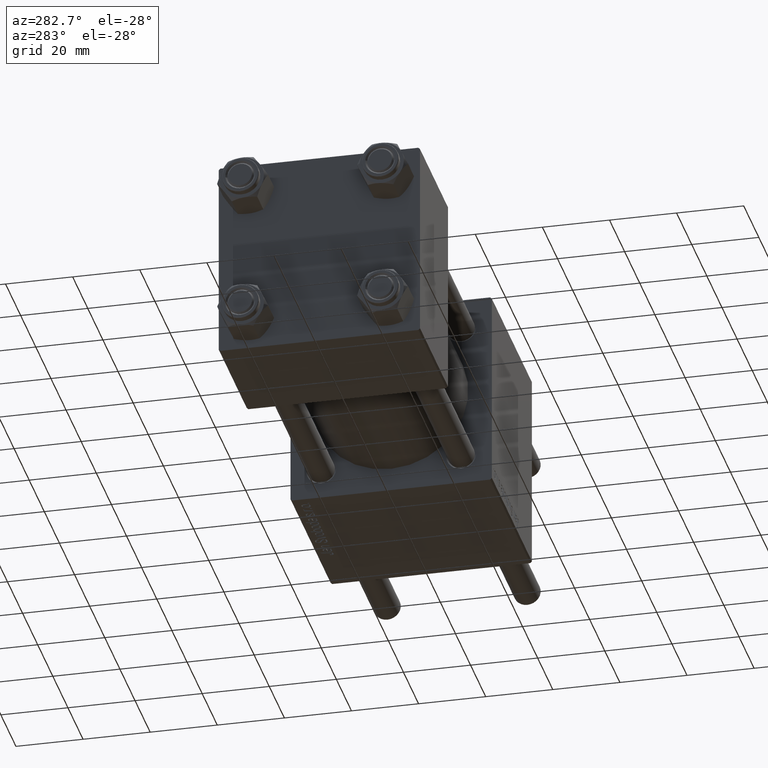
[diagram: clean part render]
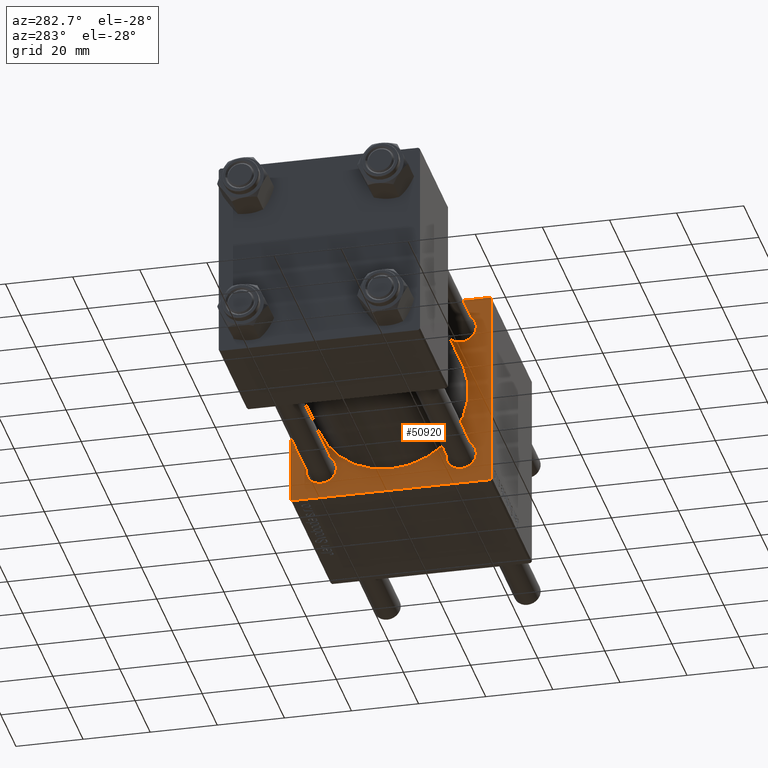
[diagram: same view with one face highlighted and labeled with its STEP entity id]
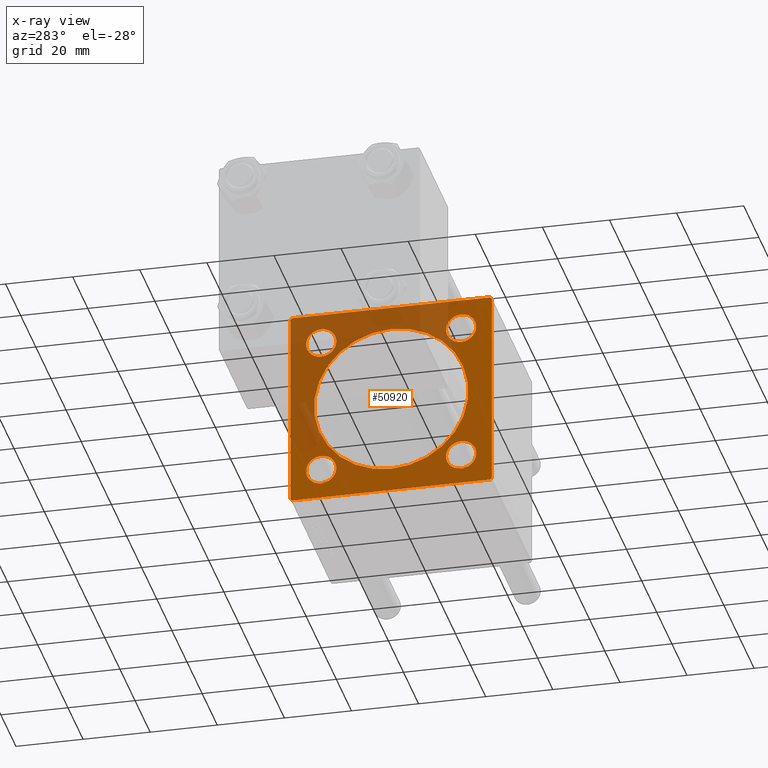
[diagram: x-ray of the same camera — body ghosted, the highlighted face saturated]
A machine part, auxiliary view. The second image highlights one B-rep face of the part: STEP entity #50920.
The next image is the same camera in x-ray: the body ghosted, the highlighted face saturated — about 41% of this face is hidden behind the body in this view.
In plain terms, the highlighted planar face has unit normal (-1, 0, 0).
Its self-contained STEP definition (entity closure, byte-faithful):
#51 = ORIENTED_EDGE ( 'NONE', *, *, #18965, .T. ) ;
#254 = CIRCLE ( 'NONE', #54559, 4.500000000000003553 ) ;
#287 = VECTOR ( 'NONE', #8270, 1000.000000000000000 ) ;
#370 = CARTESIAN_POINT ( 'NONE',  ( 95.00000000000000000, -20.84999999999999076, 16.35000000000000142 ) ) ;
#865 = ORIENTED_EDGE ( 'NONE', *, *, #24349, .T. ) ;
#909 = CARTESIAN_POINT ( 'NONE',  ( 95.00000000000000000, 20.84999999999999787, 16.34999999999999787 ) ) ;
#1102 = AXIS2_PLACEMENT_3D ( 'NONE', #15435, #54928, #10561 ) ;
#1162 = DIRECTION ( 'NONE',  ( 0.000000000000000000, 0.000000000000000000, 1.000000000000000000 ) ) ;
#1931 = CARTESIAN_POINT ( 'NONE',  ( 95.00000000000000000, -20.84999999999999076, -25.35000000000000853 ) ) ;
#1942 = LINE ( 'NONE', #16817, #34297 ) ;
#2328 = EDGE_CURVE ( 'NONE', #7538, #37507, #5188, .T. ) ;
#2448 = AXIS2_PLACEMENT_3D ( 'NONE', #36810, #50076, #44891 ) ;
#2460 = EDGE_CURVE ( 'NONE', #17973, #16271, #28729, .T. ) ;
#2643 = CIRCLE ( 'NONE', #26541, 4.500000000000003553 ) ;
#2949 = DIRECTION ( 'NONE',  ( 0.000000000000000000, 0.000000000000000000, 1.000000000000000000 ) ) ;
#3350 = LINE ( 'NONE', #55528, #48065 ) ;
#4271 = EDGE_CURVE ( 'NONE', #21496, #24437, #11679, .T. ) ;
#5124 = VERTEX_POINT ( 'NONE', #32280 ) ;
#5188 = CIRCLE ( 'NONE', #2448, 23.00000000000000000 ) ;
#5906 = VERTEX_POINT ( 'NONE', #909 ) ;
#6455 = DIRECTION ( 'NONE',  ( 0.000000000000000000, -1.000000000000000000, -1.156482317317871478E-16 ) ) ;
#6620 = AXIS2_PLACEMENT_3D ( 'NONE', #32981, #20014, #50865 ) ;
#6862 = ORIENTED_EDGE ( 'NONE', *, *, #51645, .T. ) ;
#7363 = DIRECTION ( 'NONE',  ( 1.000000000000000000, -0.000000000000000000, 0.000000000000000000 ) ) ;
#7538 = VERTEX_POINT ( 'NONE', #53842 ) ;
#7701 = AXIS2_PLACEMENT_3D ( 'NONE', #42318, #55883, #51541 ) ;
#8077 = CARTESIAN_POINT ( 'NONE',  ( 95.00000000000000000, -29.50000000000000000, -30.00000000000000000 ) ) ;
#8270 = DIRECTION ( 'NONE',  ( 0.000000000000000000, 0.000000000000000000, -1.000000000000000000 ) ) ;
#9461 = VECTOR ( 'NONE', #47860, 1000.000000000000000 ) ;
#9606 = DIRECTION ( 'NONE',  ( 1.000000000000000000, -0.000000000000000000, 0.000000000000000000 ) ) ;
#10208 = CIRCLE ( 'NONE', #35940, 4.500000000000003553 ) ;
#10240 = EDGE_CURVE ( 'NONE', #46857, #21429, #23684, .T. ) ;
#10561 = DIRECTION ( 'NONE',  ( -0.000000000000000000, 0.000000000000000000, 1.000000000000000000 ) ) ;
#10569 = DIRECTION ( 'NONE',  ( 1.000000000000000000, -0.000000000000000000, 0.000000000000000000 ) ) ;
#11072 = ORIENTED_EDGE ( 'NONE', *, *, #56111, .T. ) ;
#11137 = FACE_BOUND ( 'NONE', #45537, .T. ) ;
#11679 = CIRCLE ( 'NONE', #55862, 4.500000000000003553 ) ;
#11827 = EDGE_LOOP ( 'NONE', ( #54518, #13525 ) ) ;
#12001 = AXIS2_PLACEMENT_3D ( 'NONE', #19660, #9606, #45603 ) ;
#13101 = CARTESIAN_POINT ( 'NONE',  ( 95.00000000000000000, -20.84999999999999076, -16.35000000000000142 ) ) ;
#13525 = ORIENTED_EDGE ( 'NONE', *, *, #31703, .T. ) ;
#14872 = PLANE ( 'NONE',  #1102 ) ;
#15435 = CARTESIAN_POINT ( 'NONE',  ( 95.00000000000000000, 0.000000000000000000, 0.000000000000000000 ) ) ;
#15618 = CARTESIAN_POINT ( 'NONE',  ( 95.00000000000000000, -20.84999999999999076, -20.85000000000000497 ) ) ;
#16271 = VERTEX_POINT ( 'NONE', #24984 ) ;
#16817 = CARTESIAN_POINT ( 'NONE',  ( 95.00000000000000000, -29.74999999999999645, -29.74999999999999645 ) ) ;
#17973 = VERTEX_POINT ( 'NONE', #26640 ) ;
#18409 = ORIENTED_EDGE ( 'NONE', *, *, #31888, .F. ) ;
#18438 = CARTESIAN_POINT ( 'NONE',  ( 95.00000000000000000, -20.84999999999999076, -20.85000000000000497 ) ) ;
#18575 = CARTESIAN_POINT ( 'NONE',  ( 95.00000000000000000, -20.84999999999999076, 20.85000000000000497 ) ) ;
#18965 = EDGE_CURVE ( 'NONE', #21700, #47800, #48783, .T. ) ;
#19131 = LINE ( 'NONE', #44796, #31491 ) ;
#19482 = DIRECTION ( 'NONE',  ( 0.000000000000000000, 0.000000000000000000, 1.000000000000000000 ) ) ;
#19660 = CARTESIAN_POINT ( 'NONE',  ( 95.00000000000000000, -20.84999999999999076, 20.85000000000000497 ) ) ;
#19757 = FACE_BOUND ( 'NONE', #44083, .T. ) ;
#20014 = DIRECTION ( 'NONE',  ( 1.000000000000000000, 0.000000000000000000, 0.000000000000000000 ) ) ;
#20317 = DIRECTION ( 'NONE',  ( 0.000000000000000000, 0.000000000000000000, 1.000000000000000000 ) ) ;
#20407 = VECTOR ( 'NONE', #38397, 1000.000000000000114 ) ;
#20681 = CARTESIAN_POINT ( 'NONE',  ( 95.00000000000000000, 30.00000000000000000, 30.00000000000000000 ) ) ;
#21429 = VERTEX_POINT ( 'NONE', #1931 ) ;
#21496 = VERTEX_POINT ( 'NONE', #33601 ) ;
#21700 = VERTEX_POINT ( 'NONE', #46443 ) ;
#22316 = DIRECTION ( 'NONE',  ( 1.000000000000000000, -0.000000000000000000, 0.000000000000000000 ) ) ;
#22892 = EDGE_CURVE ( 'NONE', #45935, #5124, #37532, .T. ) ;
#23684 = CIRCLE ( 'NONE', #25528, 4.500000000000003553 ) ;
#24349 = EDGE_CURVE ( 'NONE', #29201, #37692, #47480, .T. ) ;
#24356 = FACE_BOUND ( 'NONE', #46132, .T. ) ;
#24401 = CARTESIAN_POINT ( 'NONE',  ( 95.00000000000000000, 29.74999999999999645, 29.74999999999999645 ) ) ;
#24437 = VERTEX_POINT ( 'NONE', #36206 ) ;
#24624 = CARTESIAN_POINT ( 'NONE',  ( 95.00000000000000000, 20.84999999999999787, 20.85000000000000142 ) ) ;
#24984 = CARTESIAN_POINT ( 'NONE',  ( 95.00000000000000000, 30.00000000000000000, 29.50000000000000000 ) ) ;
#24991 = AXIS2_PLACEMENT_3D ( 'NONE', #24624, #7363, #20317 ) ;
#25528 = AXIS2_PLACEMENT_3D ( 'NONE', #18438, #44661, #1162 ) ;
#25889 = VECTOR ( 'NONE', #52931, 1000.000000000000114 ) ;
#26395 = ORIENTED_EDGE ( 'NONE', *, *, #4271, .T. ) ;
#26541 = AXIS2_PLACEMENT_3D ( 'NONE', #32448, #10569, #19482 ) ;
#26640 = CARTESIAN_POINT ( 'NONE',  ( 95.00000000000000000, 29.50000000000000000, 30.00000000000000000 ) ) ;
#27981 = ORIENTED_EDGE ( 'NONE', *, *, #51848, .F. ) ;
#28678 = FACE_OUTER_BOUND ( 'NONE', #37092, .T. ) ;
#28729 = LINE ( 'NONE', #24401, #37403 ) ;
#28980 = DIRECTION ( 'NONE',  ( 0.000000000000000000, -1.000000000000000000, -1.156482317317871478E-16 ) ) ;
#29201 = VERTEX_POINT ( 'NONE', #39204 ) ;
#29720 = CARTESIAN_POINT ( 'NONE',  ( 95.00000000000000000, -30.00000000000000000, 29.99999999999999289 ) ) ;
#29800 = EDGE_CURVE ( 'NONE', #37507, #7538, #54471, .T. ) ;
#30225 = CARTESIAN_POINT ( 'NONE',  ( 95.00000000000000000, -30.00000000000000000, -29.49999999999998579 ) ) ;
#30319 = ORIENTED_EDGE ( 'NONE', *, *, #52788, .T. ) ;
#31491 = VECTOR ( 'NONE', #6455, 1000.000000000000000 ) ;
#31703 = EDGE_CURVE ( 'NONE', #21429, #46857, #254, .T. ) ;
#31888 = EDGE_CURVE ( 'NONE', #29201, #46176, #34050, .T. ) ;
#32280 = CARTESIAN_POINT ( 'NONE',  ( 95.00000000000000000, 29.50000000000000000, -29.99999999999999289 ) ) ;
#32448 = CARTESIAN_POINT ( 'NONE',  ( 95.00000000000000000, 20.84999999999999787, -20.85000000000000142 ) ) ;
#32981 = CARTESIAN_POINT ( 'NONE',  ( 95.00000000000000000, -2.602085213965210642E-15, 0.000000000000000000 ) ) ;
#33274 = VERTEX_POINT ( 'NONE', #8077 ) ;
#33472 = CIRCLE ( 'NONE', #7701, 4.500000000000003553 ) ;
#33498 = CARTESIAN_POINT ( 'NONE',  ( 95.00000000000000000, 29.74999999999999645, -29.74999999999999645 ) ) ;
#33601 = CARTESIAN_POINT ( 'NONE',  ( 95.00000000000000000, 20.84999999999999787, -25.35000000000000497 ) ) ;
#33603 = CARTESIAN_POINT ( 'NONE',  ( 95.00000000000000000, -29.50000000000000000, 29.99999999999999289 ) ) ;
#33922 = DIRECTION ( 'NONE',  ( 1.000000000000000000, -0.000000000000000000, 0.000000000000000000 ) ) ;
#34050 = LINE ( 'NONE', #29720, #9461 ) ;
#34227 = CARTESIAN_POINT ( 'NONE',  ( 95.00000000000000000, -29.74999999999999645, 29.74999999999999645 ) ) ;
#34297 = VECTOR ( 'NONE', #37365, 1000.000000000000114 ) ;
#35448 = ORIENTED_EDGE ( 'NONE', *, *, #44855, .T. ) ;
#35494 = ORIENTED_EDGE ( 'NONE', *, *, #2460, .T. ) ;
#35940 = AXIS2_PLACEMENT_3D ( 'NONE', #18575, #22316, #43668 ) ;
#35957 = ORIENTED_EDGE ( 'NONE', *, *, #53977, .T. ) ;
#36206 = CARTESIAN_POINT ( 'NONE',  ( 95.00000000000000000, 20.84999999999999787, -16.34999999999999787 ) ) ;
#36810 = CARTESIAN_POINT ( 'NONE',  ( 95.00000000000000000, -2.602085213965210642E-15, 0.000000000000000000 ) ) ;
#37031 = EDGE_CURVE ( 'NONE', #24437, #21496, #2643, .T. ) ;
#37092 = EDGE_LOOP ( 'NONE', ( #6862, #30319, #18409, #865, #27981, #35494, #35957, #45510 ) ) ;
#37365 = DIRECTION ( 'NONE',  ( 0.000000000000000000, -0.7071067811865474617, 0.7071067811865474617 ) ) ;
#37403 = VECTOR ( 'NONE', #41989, 1000.000000000000114 ) ;
#37507 = VERTEX_POINT ( 'NONE', #37701 ) ;
#37532 = LINE ( 'NONE', #33498, #20407 ) ;
#37692 = VERTEX_POINT ( 'NONE', #33603 ) ;
#37701 = CARTESIAN_POINT ( 'NONE',  ( 95.00000000000000000, 2.146024240737012665E-16, -23.00000000000000000 ) ) ;
#38397 = DIRECTION ( 'NONE',  ( -0.000000000000000000, -0.7071067811865474617, -0.7071067811865474617 ) ) ;
#39079 = CARTESIAN_POINT ( 'NONE',  ( 95.00000000000000000, 20.84999999999999787, -20.85000000000000142 ) ) ;
#39204 = CARTESIAN_POINT ( 'NONE',  ( 95.00000000000000000, -30.00000000000000000, 29.49999999999999289 ) ) ;
#39538 = EDGE_LOOP ( 'NONE', ( #44074, #26395 ) ) ;
#39563 = ORIENTED_EDGE ( 'NONE', *, *, #29800, .T. ) ;
#41556 = DIRECTION ( 'NONE',  ( 1.000000000000000000, -0.000000000000000000, 0.000000000000000000 ) ) ;
#41944 = FACE_BOUND ( 'NONE', #39538, .T. ) ;
#41989 = DIRECTION ( 'NONE',  ( 0.000000000000000000, 0.7071067811865474617, -0.7071067811865474617 ) ) ;
#42127 = EDGE_CURVE ( 'NONE', #47800, #21700, #10208, .T. ) ;
#42318 = CARTESIAN_POINT ( 'NONE',  ( 95.00000000000000000, 20.84999999999999787, 20.85000000000000142 ) ) ;
#43668 = DIRECTION ( 'NONE',  ( 0.000000000000000000, 0.000000000000000000, 1.000000000000000000 ) ) ;
#44074 = ORIENTED_EDGE ( 'NONE', *, *, #37031, .T. ) ;
#44083 = EDGE_LOOP ( 'NONE', ( #51, #48127 ) ) ;
#44293 = CIRCLE ( 'NONE', #24991, 4.500000000000003553 ) ;
#44661 = DIRECTION ( 'NONE',  ( 1.000000000000000000, -0.000000000000000000, 0.000000000000000000 ) ) ;
#44796 = CARTESIAN_POINT ( 'NONE',  ( 95.00000000000000000, 30.00000000000000000, 30.00000000000000000 ) ) ;
#44855 = EDGE_CURVE ( 'NONE', #5906, #46922, #44293, .T. ) ;
#44891 = DIRECTION ( 'NONE',  ( 0.000000000000000000, 0.000000000000000000, -1.000000000000000000 ) ) ;
#45510 = ORIENTED_EDGE ( 'NONE', *, *, #22892, .T. ) ;
#45537 = EDGE_LOOP ( 'NONE', ( #11072, #35448 ) ) ;
#45603 = DIRECTION ( 'NONE',  ( 0.000000000000000000, 0.000000000000000000, 1.000000000000000000 ) ) ;
#45935 = VERTEX_POINT ( 'NONE', #48879 ) ;
#46132 = EDGE_LOOP ( 'NONE', ( #56532, #39563 ) ) ;
#46176 = VERTEX_POINT ( 'NONE', #30225 ) ;
#46443 = CARTESIAN_POINT ( 'NONE',  ( 95.00000000000000000, -20.84999999999999076, 25.35000000000000853 ) ) ;
#46569 = FACE_BOUND ( 'NONE', #11827, .T. ) ;
#46857 = VERTEX_POINT ( 'NONE', #13101 ) ;
#46922 = VERTEX_POINT ( 'NONE', #54284 ) ;
#47480 = LINE ( 'NONE', #34227, #25889 ) ;
#47800 = VERTEX_POINT ( 'NONE', #370 ) ;
#47860 = DIRECTION ( 'NONE',  ( 0.000000000000000000, 0.000000000000000000, -1.000000000000000000 ) ) ;
#48025 = LINE ( 'NONE', #20681, #287 ) ;
#48065 = VECTOR ( 'NONE', #28980, 1000.000000000000000 ) ;
#48127 = ORIENTED_EDGE ( 'NONE', *, *, #42127, .T. ) ;
#48783 = CIRCLE ( 'NONE', #12001, 4.500000000000003553 ) ;
#48879 = CARTESIAN_POINT ( 'NONE',  ( 95.00000000000000000, 30.00000000000000000, -29.49999999999997868 ) ) ;
#50076 = DIRECTION ( 'NONE',  ( 1.000000000000000000, 0.000000000000000000, 0.000000000000000000 ) ) ;
#50865 = DIRECTION ( 'NONE',  ( 0.000000000000000000, 0.000000000000000000, -1.000000000000000000 ) ) ;
#50920 = ADVANCED_FACE ( 'NONE', ( #19757, #11137, #41944, #46569, #24356, #28678 ), #14872, .T. ) ;
#51541 = DIRECTION ( 'NONE',  ( 0.000000000000000000, 0.000000000000000000, 1.000000000000000000 ) ) ;
#51645 = EDGE_CURVE ( 'NONE', #5124, #33274, #3350, .T. ) ;
#51848 = EDGE_CURVE ( 'NONE', #17973, #37692, #19131, .T. ) ;
#52788 = EDGE_CURVE ( 'NONE', #33274, #46176, #1942, .T. ) ;
#52931 = DIRECTION ( 'NONE',  ( -0.000000000000000000, 0.7071067811865474617, 0.7071067811865474617 ) ) ;
#53842 = CARTESIAN_POINT ( 'NONE',  ( 95.00000000000000000, -2.602085213965210642E-15, 23.00000000000000000 ) ) ;
#53977 = EDGE_CURVE ( 'NONE', #16271, #45935, #48025, .T. ) ;
#54284 = CARTESIAN_POINT ( 'NONE',  ( 95.00000000000000000, 20.84999999999999787, 25.35000000000000497 ) ) ;
#54471 = CIRCLE ( 'NONE', #6620, 23.00000000000000000 ) ;
#54518 = ORIENTED_EDGE ( 'NONE', *, *, #10240, .T. ) ;
#54559 = AXIS2_PLACEMENT_3D ( 'NONE', #15618, #41556, #2949 ) ;
#54928 = DIRECTION ( 'NONE',  ( -1.000000000000000000, 0.000000000000000000, -0.000000000000000000 ) ) ;
#55528 = CARTESIAN_POINT ( 'NONE',  ( 95.00000000000000000, 30.00000000000000000, -29.99999999999999289 ) ) ;
#55862 = AXIS2_PLACEMENT_3D ( 'NONE', #39079, #33922, #56682 ) ;
#55883 = DIRECTION ( 'NONE',  ( 1.000000000000000000, -0.000000000000000000, 0.000000000000000000 ) ) ;
#56111 = EDGE_CURVE ( 'NONE', #46922, #5906, #33472, .T. ) ;
#56532 = ORIENTED_EDGE ( 'NONE', *, *, #2328, .T. ) ;
#56682 = DIRECTION ( 'NONE',  ( 0.000000000000000000, 0.000000000000000000, 1.000000000000000000 ) ) ;